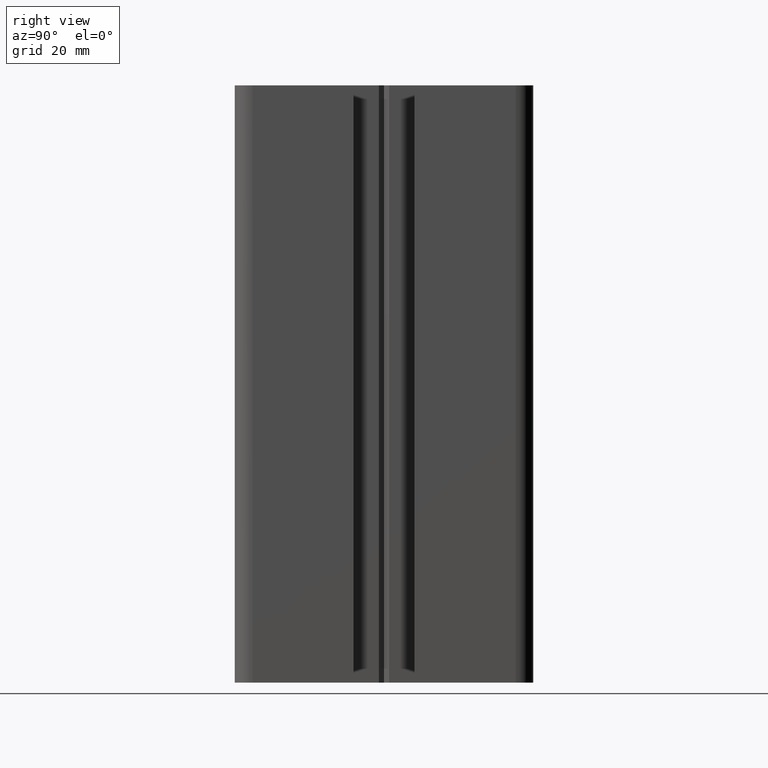
[diagram: clean part render]
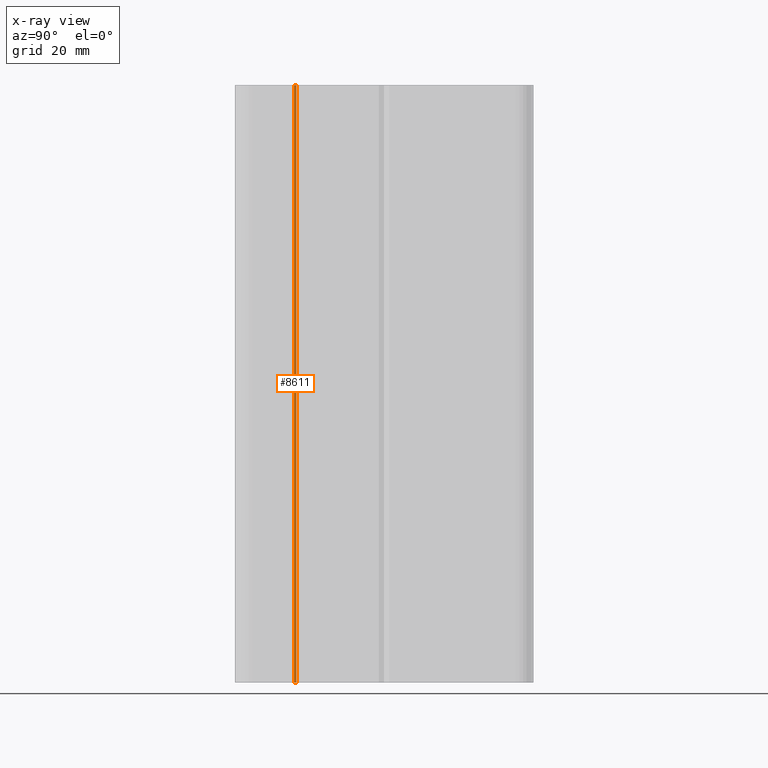
[diagram: x-ray — body ghosted, one internal face saturated and labeled with its STEP entity id]
A machine part, right view, then the same camera in x-ray: the body is ghosted and one INTERNAL B-rep face — a face not visible from any outside direction — is saturated and labeled: STEP entity #8611.
In plain terms, the highlighted cylindrical surface (edge-blend (fillet) strip) has radius 0.5 mm, axis along (-0, -0, -1).
Its self-contained STEP definition (entity closure, byte-faithful):
#433 = VERTEX_POINT ( 'NONE', #3672 ) ;
#500 = VERTEX_POINT ( 'NONE', #3819 ) ;
#508 = VERTEX_POINT ( 'NONE', #3860 ) ;
#520 = EDGE_CURVE ( 'NONE', #500, #508, #3894, .T. ) ;
#622 = EDGE_CURVE ( 'NONE', #500, #433, #4090, .T. ) ;
#1139 = EDGE_CURVE ( 'NONE', #508, #1198, #4971, .T. ) ;
#1198 = VERTEX_POINT ( 'NONE', #5092 ) ;
#3672 = CARTESIAN_POINT ( 'NONE',  ( -12.92914703460843000, -14.69691130724650000, 100.0000000000000000 ) ) ;
#3819 = CARTESIAN_POINT ( 'NONE',  ( -13.07559372235814100, -15.05046477618273900, 100.0000000000000000 ) ) ;
#3860 = CARTESIAN_POINT ( 'NONE',  ( -13.07559372235814100, -15.05046477618273900, 0.0000000000000000000 ) ) ;
#3891 = DIRECTION ( 'NONE',  ( -0.0000000000000000000, -0.0000000000000000000, -1.000000000000000000 ) ) ;
#3892 = VECTOR ( 'NONE', #3891, 1000.000000000000000 ) ;
#3893 = CARTESIAN_POINT ( 'NONE',  ( -13.07559372235814100, -15.05046477618273900, 100.0000000000000000 ) ) ;
#3894 = LINE ( 'NONE', #3893, #3892 ) ;
#4043 = AXIS2_PLACEMENT_3D ( 'NONE', #4089, #4088, #4087 ) ;
#4087 = DIRECTION ( 'NONE',  ( 1.000000000000000000, 0.0000000000000000000, 0.0000000000000000000 ) ) ;
#4088 = DIRECTION ( 'NONE',  ( -0.0000000000000000000, -0.0000000000000000000, -1.000000000000000000 ) ) ;
#4089 = CARTESIAN_POINT ( 'NONE',  ( -12.57559372235814100, -15.05046477618273900, 100.0000000000000000 ) ) ;
#4090 = CIRCLE ( 'NONE', #4043, 0.4999999999999987200 ) ;
#4968 = DIRECTION ( 'NONE',  ( 1.000000000000000000, 0.0000000000000000000, 0.0000000000000000000 ) ) ;
#4969 = DIRECTION ( 'NONE',  ( -0.0000000000000000000, -0.0000000000000000000, -1.000000000000000000 ) ) ;
#4970 = CARTESIAN_POINT ( 'NONE',  ( -12.57559372235814100, -15.05046477618273900, 0.0000000000000000000 ) ) ;
#4971 = CIRCLE ( 'NONE', #4997, 0.4999999999999987200 ) ;
#4997 = AXIS2_PLACEMENT_3D ( 'NONE', #4970, #4969, #4968 ) ;
#5092 = CARTESIAN_POINT ( 'NONE',  ( -12.92914703460843000, -14.69691130724650000, 0.0000000000000000000 ) ) ;
#8238 = CARTESIAN_POINT ( 'NONE',  ( -12.57559372235814100, -15.05046477618273900, 100.0000000000000000 ) ) ;
#8240 = DIRECTION ( 'NONE',  ( -0.0000000000000000000, -0.0000000000000000000, -1.000000000000000000 ) ) ;
#8245 = CYLINDRICAL_SURFACE ( 'NONE', #8248, 0.4999999999999987200 ) ;
#8248 = AXIS2_PLACEMENT_3D ( 'NONE', #8238, #8240, #8285 ) ;
#8285 = DIRECTION ( 'NONE',  ( -1.000000000000000000, 0.0000000000000000000, 0.0000000000000000000 ) ) ;
#8290 = DIRECTION ( 'NONE',  ( -0.0000000000000000000, -0.0000000000000000000, -1.000000000000000000 ) ) ;
#8291 = VECTOR ( 'NONE', #8290, 1000.000000000000000 ) ;
#8292 = CARTESIAN_POINT ( 'NONE',  ( -12.92914703460843000, -14.69691130724650000, 100.0000000000000000 ) ) ;
#8293 = LINE ( 'NONE', #8292, #8291 ) ;
#8296 = FACE_OUTER_BOUND ( 'NONE', #8606, .T. ) ;
#8605 = EDGE_CURVE ( 'NONE', #433, #1198, #8293, .T. ) ;
#8606 = EDGE_LOOP ( 'NONE', ( #8619, #8614, #8633, #8607 ) ) ;
#8607 = ORIENTED_EDGE ( 'NONE', *, *, #1139, .F. ) ;
#8611 = ADVANCED_FACE ( 'NONE', ( #8296 ), #8245, .T. ) ;
#8614 = ORIENTED_EDGE ( 'NONE', *, *, #622, .T. ) ;
#8619 = ORIENTED_EDGE ( 'NONE', *, *, #520, .F. ) ;
#8633 = ORIENTED_EDGE ( 'NONE', *, *, #8605, .T. ) ;